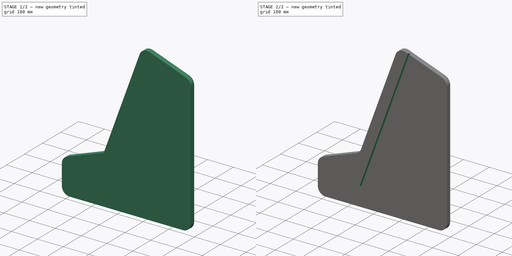
[diagram: build sequence overview — one tinted view per stage of 2, left to right]
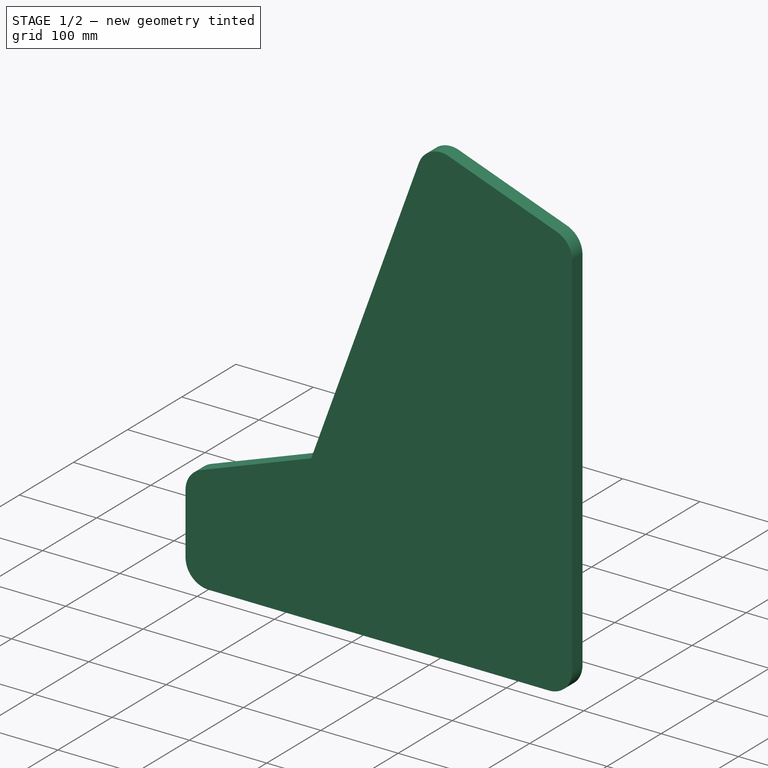
[diagram: stage 1 of 2 — iso view after this stage's code; geometry added in this stage tinted green]
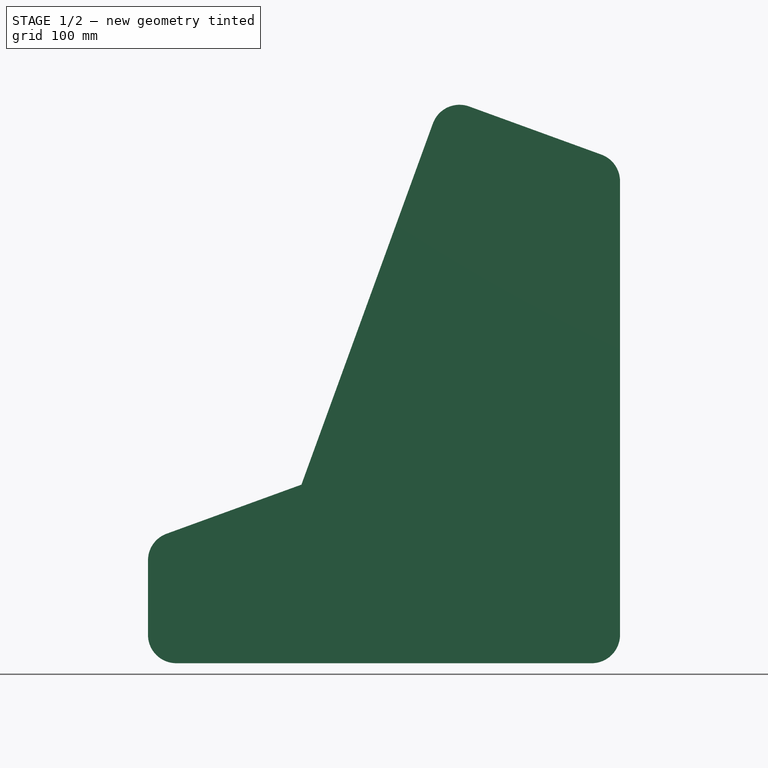
[diagram: stage 1 of 2 — front view after this stage's code; geometry added in this stage tinted green]
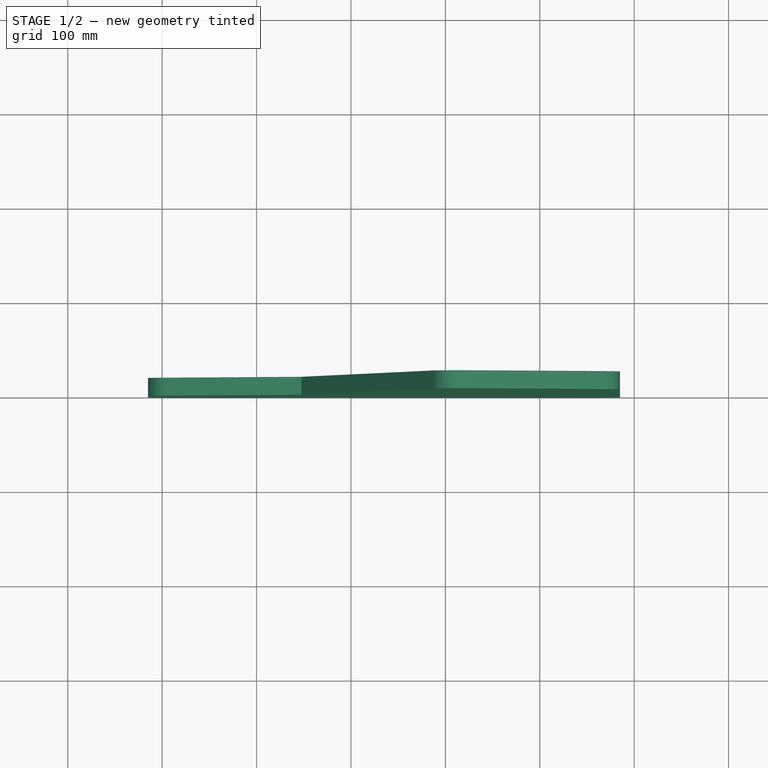
[diagram: stage 1 of 2 — top view after this stage's code; geometry added in this stage tinted green]
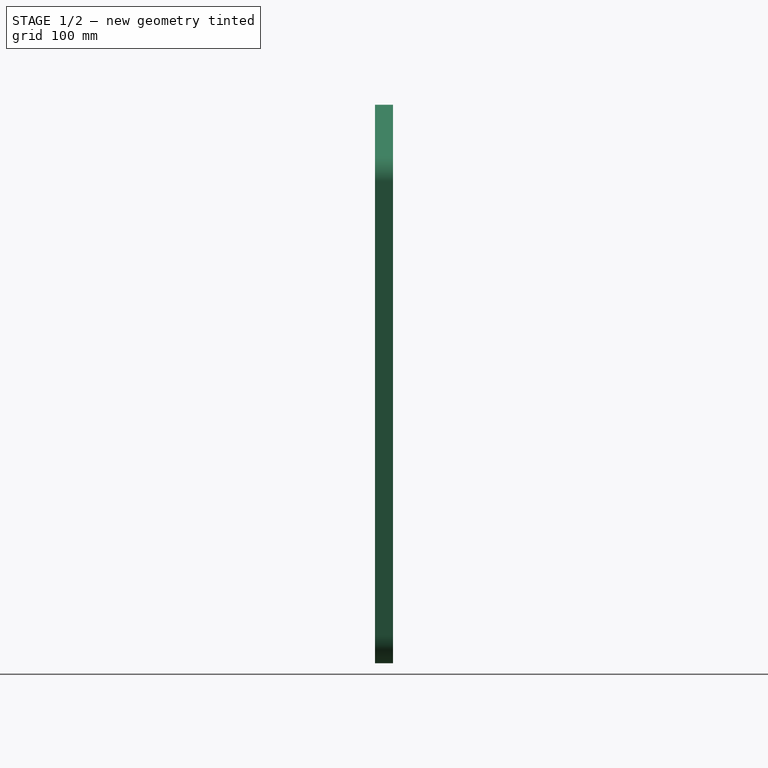
[diagram: stage 1 of 2 — right view after this stage's code; geometry added in this stage tinted green]
FCSTD DOCUMENT  (FreeCAD 0.18R16131 (Git))
Label: 9000_ASM_Profile_Sidewall_NoMarquee
License: All rights reserved
LicenseURL: http://en.wikipedia.org/wiki/All_rights_reserved
objects: TechDraw::DrawViewDimension×17, Sketcher::SketchObject×3, TechDraw::DrawViewPart×2, PartDesign::Fillet×2, Spreadsheet::Sheet×1, PartDesign::Pad×1, TechDraw::DrawSVGTemplate×1, TechDraw::DrawPage×1, PartDesign::Pocket×1, PartDesign::Body×1
note: 10 computed .brp shape members not serialized (recipe doc carries the construction recipe); baked Part::Feature solids carry a one-line shape summary decoded from their .brp

FEATURE [Spreadsheet::Sheet] Spreadsheet  label="XLS"
  cells = B2=BODY FLOOR; E2=Ext.Ref; B3=Z=; C3=16; D3=.T; E3=Thichness; B4=Y=; C4=500; D4=.W; E4=Width; B5=X=; C5=400; D5=.D; E5=Depth; B7=Position Side Wall; D8=Left; E8=Right; B9=X0; D9(X0)==+C5; B10=Y0; C10=Y0_2; D10(Y0)==+C4; E10(Y0_2)==+D10 - D11; B11=Z0; D11(Z0)=13; B15=Position Front Wall; B16=x; C16=X0_Front; D16(X0_Front)==+H16 * abs(cos(D19)); F16=Distance on incline; G16=nS; H16(nS)=50; I16=mm; B17=y; C17=Y0_Front; D17(Y0_Front)=0; B18=z; C18=Z0_Front; D18(Z0_Front)==+H16 * abs(sin(D19)) + H18 + H20; F18=Hight of Incline; G18=nH; H18(nH)==125 + 2; I18=mm; B19=angle; C19=angley; D19(angley)=-70; F20=Thickness Material; H20=13; B22=Position Pedastil; B23=x; C23=x_pedastil; D23(x_pedastil)=0; B24=y; C24=y_pedastil; D24(y_pedastil)=0; B25=z; C25=z_pedastil; D25(z_pedastil)=-716; B27=Position Marquee; B28=x; C28==x_pedastil; B29=y; C29==y_pedastil; B30=z; C30==z_pedastil; B31=Incline
FEATURE [Sketcher::SketchObject] Sketch
  Placement = pos=(0,0,0) rot=(1,0,0;1.5708rad)
  sketch-geometry (8):
    g0: LineSegment StartX=-18.8859 StartY=-15 StartZ=0 EndX=416.114 EndY=-15 EndZ=0
    g1: LineSegment StartX=416.114 StartY=-15 StartZ=0 EndX=416.114 EndY=575 EndZ=0
    g2: LineSegment StartX=416.114 StartY=575 StartZ=0 EndX=176.973 EndY=663.523 EndZ=0
    g3: LineSegment StartX=176.973 StartY=663.523 StartZ=0 EndX=130.145 EndY=542.25 EndZ=0
    g4: LineSegment StartX=130.145 StartY=542.25 StartZ=0 EndX=271.305 EndY=491.516 EndZ=0
    g5: LineSegment StartX=271.305 StartY=491.516 StartZ=0 EndX=134.264 EndY=115 EndZ=0
    g6: LineSegment StartX=134.264 StartY=115 StartZ=0 EndX=-18.8859 EndY=115 EndZ=0
    g7: LineSegment StartX=-18.8859 StartY=115 StartZ=0 EndX=-18.8859 EndY=-15 EndZ=0
  constraints (20):
    c: Coincident(g0,g1)
    c: Coincident(g1,g2)
    c: Coincident(g2,g3)
    c: Coincident(g3,g4)
    c: Coincident(g4,g5)
    c: Coincident(g5,g6)
    c: Coincident(g6,g7)
    c: Perpendicular(g6,g7)
    c: Vertical(g7)
    c: Angle(g5,g6) = 1.91986
    c: Vertical(g1)
    c: Distance(g2) = 255
    c: Distance(g4) = 150
    c: Distance(g3) = 130
    c: Coincident(g7,g0)
    c: Horizontal(g0)
    c: DistanceY(g7,g7) = 130
    c: Distance(g1) = 590
    c: DistanceX(g0,g0) = 435
    c: DistanceY(g0,g-1) = 15
FEATURE [Sketcher::SketchObject] Sketch001
  MapMode = 5
  Placement = pos=(0,0,0) rot=(1,0,0;1.5708rad)
  Support = -> [XZ_Plane]
  sketch-geometry (7):
    g0: LineSegment StartX=-15 StartY=-15 StartZ=0 EndX=-15 EndY=115 EndZ=0
    g1: LineSegment StartX=147.526 StartY=174.155 StartZ=0 EndX=297.061 EndY=585 EndZ=0
    g2: LineSegment StartX=297.061 StartY=585 StartZ=0 EndX=485 EndY=516.596 EndZ=0
    g3: LineSegment StartX=485 StartY=516.596 StartZ=0 EndX=485 EndY=-15 EndZ=0
    g4: LineSegment StartX=485 StartY=-15 StartZ=0 EndX=-15 EndY=-15 EndZ=0
    g5: LineSegment StartX=-15 StartY=115 StartZ=0 EndX=147.526 EndY=174.155 EndZ=0
    g6: LineSegment [constr] StartX=-15 StartY=-15 StartZ=0 EndX=0 EndY=0 EndZ=0
  constraints (20):
    c: Coincident(g1,g2)
    c: Coincident(g2,g3)
    c: Coincident(g3,g4)
    c: Horizontal(g4)
    c: Vertical(g3)
    c: Vertical(g0)
    c: Perpendicular(g2,g1)
    c: Angle(g2,g3) = 1.91986
    c: DistanceX(g4,g4) = 500
    c: DistanceY(g0,g0) = 130
    c: Distance(g2) = 200
    c: Angle(g0,g5) = 1.91986
    c: Coincident(g5,g0)
    c: Coincident(g1,g5)
    c: Coincident(g0,g4)
    c: Coincident(g6,g0)
    c: DistanceX(g6,g6) = 15
    c: DistanceY(g6,g6) = 15
    c: Coincident(g6,g-1)
    c: DistanceY(g3,g1) = 600
FEATURE [PartDesign::Pad] Pad
  Length = 19
  Length2 = 100
  Placement = pos=(0,0,0) rot=(1,0,0;1.5708rad)
  Profile = -> Sketch001
  Reversed = true
  Type = 0
FEATURE [TechDraw::DrawSVGTemplate] Template
  EditableTexts = Designed_by_Name=Designed by Name; Drawing_number=Drawing number; FC-Date=Date; FC-SC=0.25; FC-SH=1; FC-Title=Sidewall No-Marquee; Subtitle=Subtitle; Weight=.
  Height = 210
  Orientation = 1
  Width = 297
FEATURE [TechDraw::DrawViewPart] View
  CoarseView = false
  Direction = (0,1,0)
  Focus = 100
  HardHidden = false
  IsoCount = 0
  IsoHidden = true
  IsoVisible = true
  LockPosition = false
  Perspective = false
  Rotation = -90
  Scale = 0.2
  ScaleType = 0
  SeamHidden = false
  SeamVisible = false
  SmoothHidden = false
  SmoothVisible = false
  Source = -> [Sketch001]
  X = 128.3
  Y = 134.016
FEATURE [TechDraw::DrawViewDimension] Dimension
  Arbitrary = false
  FormatSpec = %.2f
  LockPosition = false
  MeasureType = 1
  OverTolerance = 0
  References2D = -> [View]
  Rotation = 0
  ScaleType = 0
  Type = 1
  UnderTolerance = 0
  X = 3.00512
  Y = -57.3431
FEATURE [TechDraw::DrawViewDimension] Dimension001
  Arbitrary = false
  FormatSpec = %.2f
  LockPosition = false
  MeasureType = 1
  OverTolerance = 0
  References2D = -> [View]
  Rotation = 0
  ScaleType = 0
  Type = 2
  UnderTolerance = 0
  X = 104.845
  Y = -5.10871
FEATURE [TechDraw::DrawViewDimension] Dimension003
  Arbitrary = false
  FormatSpec = %.2f
  LockPosition = false
  MeasureType = 1
  OverTolerance = 0
  References2D = -> [View]
  Rotation = 0
  ScaleType = 0
  Type = 0
  UnderTolerance = 0
  X = -63.7149
  Y = 24.8892
FEATURE [TechDraw::DrawViewDimension] Dimension004
  Arbitrary = false
  FormatSpec = %.2f
  LockPosition = false
  MeasureType = 1
  OverTolerance = 0
  References2D = -> [View]
  Rotation = 0
  ScaleType = 0
  Type = 6
  UnderTolerance = 0
  X = -49.7743
  Y = -26.9413
FEATURE [TechDraw::DrawViewDimension] Dimension005
  Arbitrary = false
  FormatSpec = %.2f
  LockPosition = false
  MeasureType = 1
  OverTolerance = 0
  References2D = -> [View]
  Rotation = 0
  ScaleType = 0
  Type = 6
  UnderTolerance = 0
  X = 51.5247
  Y = -30.3126
FEATURE [TechDraw::DrawViewDimension] Dimension006
  Arbitrary = false
  FormatSpec = %.2f
  LockPosition = false
  MeasureType = 1
  OverTolerance = 0
  References2D = -> [View]
  Rotation = 0
  ScaleType = 0
  Type = 2
  UnderTolerance = 0
  X = -92.8126
  Y = -16.2238
FEATURE [TechDraw::DrawViewDimension] Dimension007
  Arbitrary = false
  FormatSpec = %.2f
  LockPosition = false
  MeasureType = 1
  OverTolerance = 0
  References2D = -> [View]
  Rotation = 0
  ScaleType = 0
  Type = 2
  UnderTolerance = 0
  X = -34.1387
  Y = -17.5113
FEATURE [TechDraw::DrawViewDimension] Dimension008
  Arbitrary = false
  FormatSpec = %.2f
  LockPosition = false
  MeasureType = 1
  OverTolerance = 0
  References2D = -> [View]
  Rotation = 0
  ScaleType = 0
  Type = 1
  UnderTolerance = 0
  X = 31.6166
  Y = 8.92218
FEATURE [TechDraw::DrawViewDimension] Dimension009
  Arbitrary = false
  FormatSpec = %.2f
  LockPosition = false
  MeasureType = 1
  OverTolerance = 0
  References2D = -> [View]
  Rotation = 0
  ScaleType = 0
  Type = 1
  UnderTolerance = 0
  X = 50.5208
  Y = 31.5948
FEATURE [TechDraw::DrawViewDimension] Dimension010
  Arbitrary = false
  FormatSpec = %.2f
  LockPosition = false
  MeasureType = 1
  OverTolerance = 0
  References2D = -> [View]
  Rotation = 0
  ScaleType = 0
  Type = 2
  UnderTolerance = 0
  X = 16.7059
  Y = -8.94018
FEATURE [PartDesign::Fillet] Fillet
  Base = -> Pad [Edge2,Edge1,Edge8,Edge11,Edge14]
  BaseFeature = -> Pad
  Placement = pos=(0,0,0) rot=(1,0,0;1.5708rad)
  Radius = 30
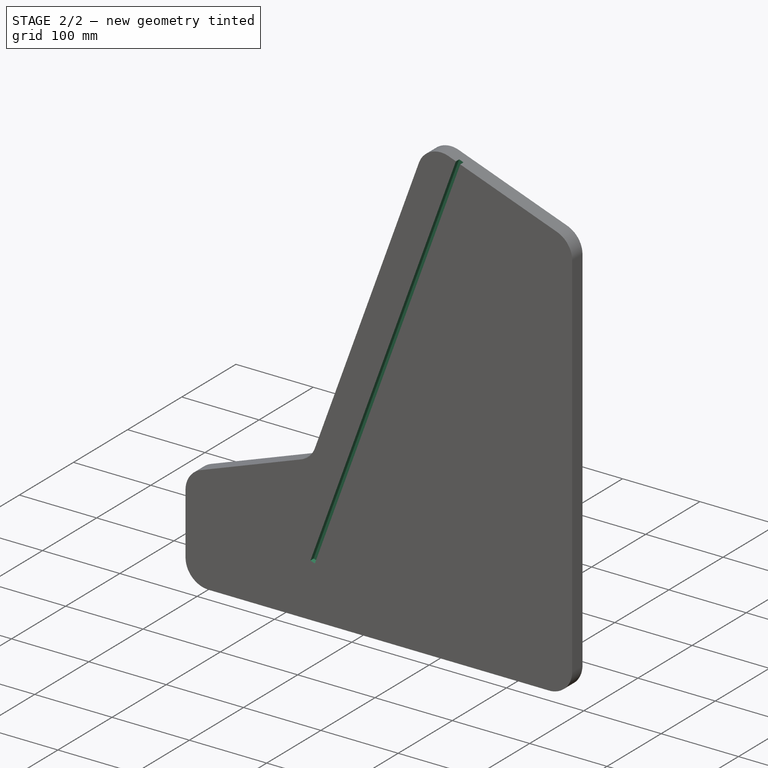
[diagram: stage 2 of 2 — iso view after this stage's code; geometry added in this stage tinted green]
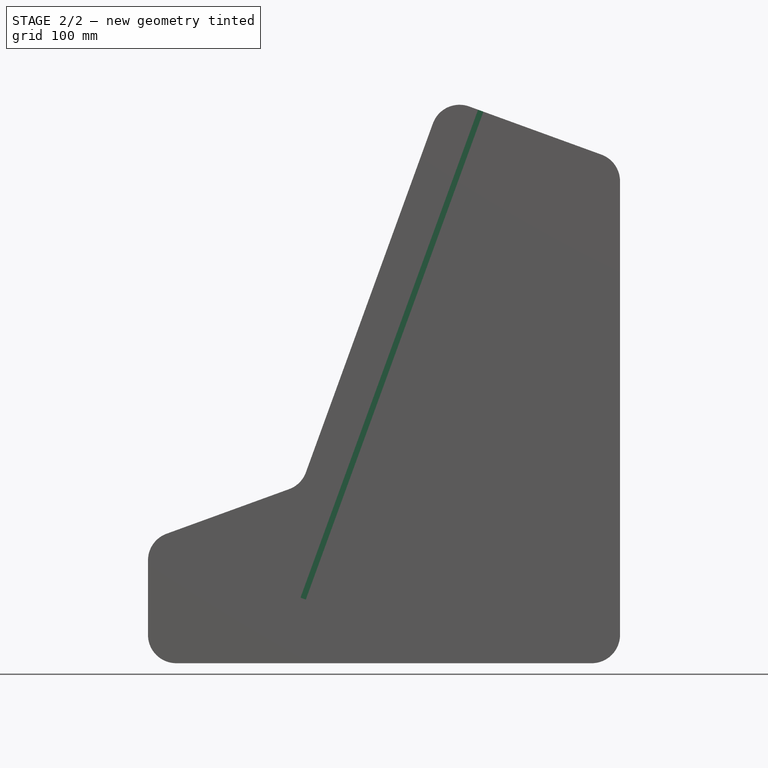
[diagram: stage 2 of 2 — front view after this stage's code; geometry added in this stage tinted green]
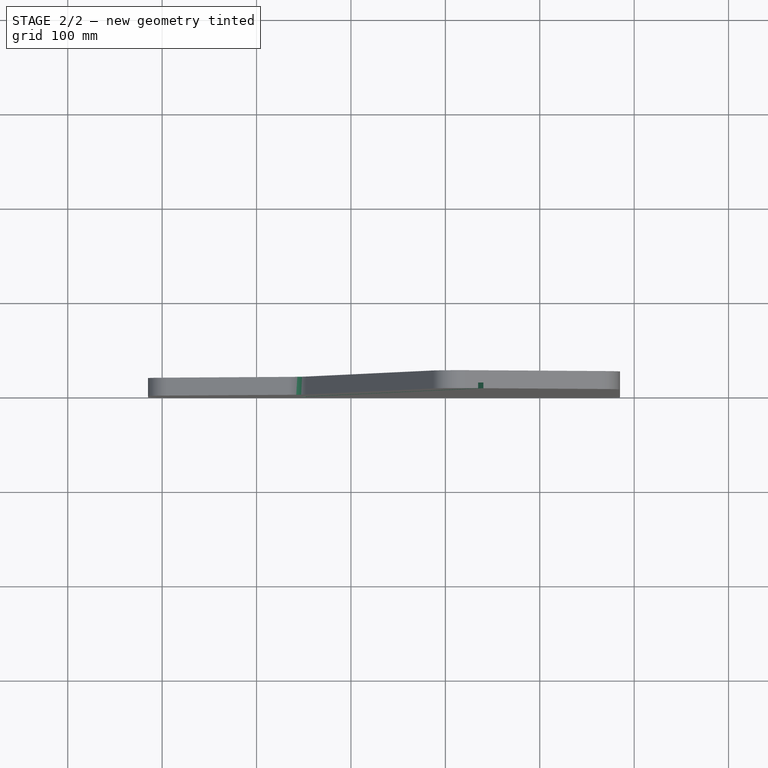
[diagram: stage 2 of 2 — top view after this stage's code; geometry added in this stage tinted green]
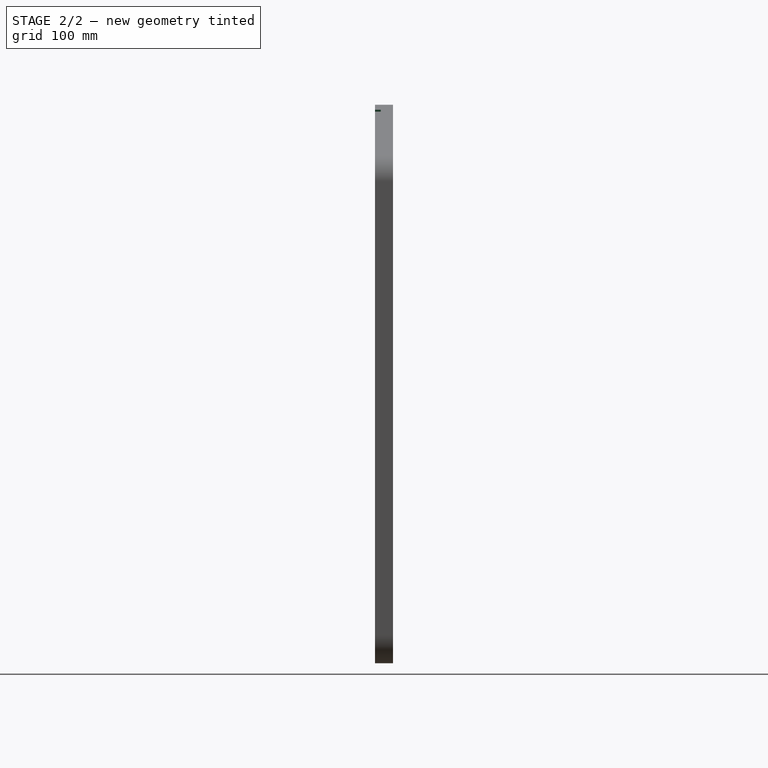
[diagram: stage 2 of 2 — right view after this stage's code; geometry added in this stage tinted green]
FEATURE [PartDesign::Fillet] Fillet001
  Base = -> Fillet [Edge28]
  BaseFeature = -> Fillet
  Placement = pos=(0,0,0) rot=(1,0,0;1.5708rad)
  Radius = 30
FEATURE [TechDraw::DrawViewPart] View002
  CoarseView = false
  Direction = (0,1,0)
  Focus = 100
  HardHidden = false
  IsoCount = 0
  IsoHidden = false
  IsoVisible = false
  LockPosition = false
  Perspective = false
  Rotation = 90
  Scale = 0.25
  ScaleType = 0
  SeamHidden = false
  SeamVisible = false
  SmoothHidden = false
  SmoothVisible = false
  Source = -> [Sketch001]
  X = 135.55
  Y = 122.991
FEATURE [TechDraw::DrawViewDimension] Dimension011
  Arbitrary = false
  FormatSpec = %.2f
  LockPosition = false
  MeasureType = 1
  OverTolerance = 0
  References2D = -> [View002]
  Rotation = 0
  ScaleType = 0
  Type = 1
  UnderTolerance = 0
  X = -2.54216
  Y = 71.3165
FEATURE [TechDraw::DrawViewDimension] Dimension012
  Arbitrary = false
  FormatSpec = %.2f
  LockPosition = false
  MeasureType = 1
  OverTolerance = 0
  References2D = -> [View002]
  Rotation = 0
  ScaleType = 0
  Type = 2
  UnderTolerance = 0
  X = -104.488
  Y = 0
FEATURE [TechDraw::DrawViewDimension] Dimension013
  Arbitrary = false
  FormatSpec = %.2f
  LockPosition = false
  MeasureType = 1
  OverTolerance = 0
  References2D = -> [View002]
  Rotation = 0
  ScaleType = 0
  Type = 1
  UnderTolerance = 0
  X = -60.3515
  Y = -71.2574
FEATURE [TechDraw::DrawViewDimension] Dimension014
  Arbitrary = false
  FormatSpec = %.2f
  LockPosition = false
  MeasureType = 1
  OverTolerance = 0
  References2D = -> [View002]
  Rotation = 0
  ScaleType = 0
  Type = 6
  UnderTolerance = 0
  X = -49.3403
  Y = -39.8344
FEATURE [TechDraw::DrawViewDimension] Dimension015
  Arbitrary = false
  FormatSpec = %.2f
  LockPosition = false
  MeasureType = 1
  OverTolerance = 0
  References2D = -> [View002]
  Rotation = 0
  ScaleType = 0
  Type = 6
  UnderTolerance = 0
  X = 57.2619
  Y = 45.9453
FEATURE [TechDraw::DrawViewDimension] Dimension016
  Arbitrary = false
  FormatSpec = %.2f
  LockPosition = false
  MeasureType = 1
  OverTolerance = 0
  References2D = -> [View002]
  Rotation = 0
  ScaleType = 0
  Type = 6
  UnderTolerance = 0
  X = 61.5622
  Y = 25.5755
FEATURE [TechDraw::DrawViewDimension] Dimension017
  Arbitrary = false
  FormatSpec = %.2f
  LockPosition = false
  MeasureType = 1
  OverTolerance = 0
  References2D = -> [View002]
  Rotation = 0
  ScaleType = 0
  Type = 0
  UnderTolerance = 0
  X = 92.6539
  Y = 47.6404
FEATURE [TechDraw::DrawPage] Page
  KeepUpdated = true
  ProjectionType = 0
  Template = -> Template
  Views = -> [View,Dimension,Dimension001,Dimension003,Dimension004,Dimension005,Dimension006,Dimension007,Dimension008,Dimension009,Dimension010,View002,Dimension011,Dimension012,Dimension013,Dimension014,Dimension015,Dimension016,Dimension017]
FEATURE [Sketcher::SketchObject] Sketch002
  ExternalGeometry = -> [Fillet001]
  MapMode = 5
  Placement = pos=(0,-4e-16,0) rot=(1,0,0;1.5708rad)
  Support = -> [Fillet001]
  sketch-geometry (5):
    g0: LineSegment StartX=340.287 StartY=569.267 StartZ=0 EndX=152.176 EndY=52.4361 EndZ=0
    g1: LineSegment StartX=146.538 StartY=54.4883 StartZ=0 EndX=334.649 EndY=571.319 EndZ=0
    g2: LineSegment StartX=152.176 StartY=52.4361 StartZ=0 EndX=146.538 EndY=54.4883 EndZ=0
    g3: LineSegment StartX=334.649 StartY=571.319 StartZ=0 EndX=340.287 EndY=569.267 EndZ=0
    g4: LineSegment [constr] StartX=152.311 StartY=187.3 StartZ=0 EndX=189.898 EndY=173.619 EndZ=0
  constraints (15):
    c: Parallel(g0,g1)
    c: Coincident(g2,g0)
    c: Coincident(g2,g1)
    c: Coincident(g3,g1)
    c: Coincident(g3,g0)
    c: Perpendicular(g1,g3)
    c: Perpendicular(g1,g2)
    c: Parallel(g1,g-6)
    c: Distance(g3) = 6
    c: Coincident(g4,g-6)
    c: PointOnObject(g4,g1)
    c: Perpendicular(g1,g4)
    c: Distance(g4) = 40
    c: PointOnObject(g0,g-5)
    c: Distance(g0) = 550
FEATURE [PartDesign::Pocket] Pocket
  BaseFeature = -> Fillet001
  Length = 6
  Length2 = 100
  Placement = pos=(0,0,0) rot=(1,0,0;1.5708rad)
  Profile = -> Sketch002
  Type = 0
FEATURE [PartDesign::Body] Body
  Group = -> [Sketch001,Pad,Fillet,Fillet001,Sketch002,Pocket]
  Origin = -> Origin
  Tip = -> Pocket
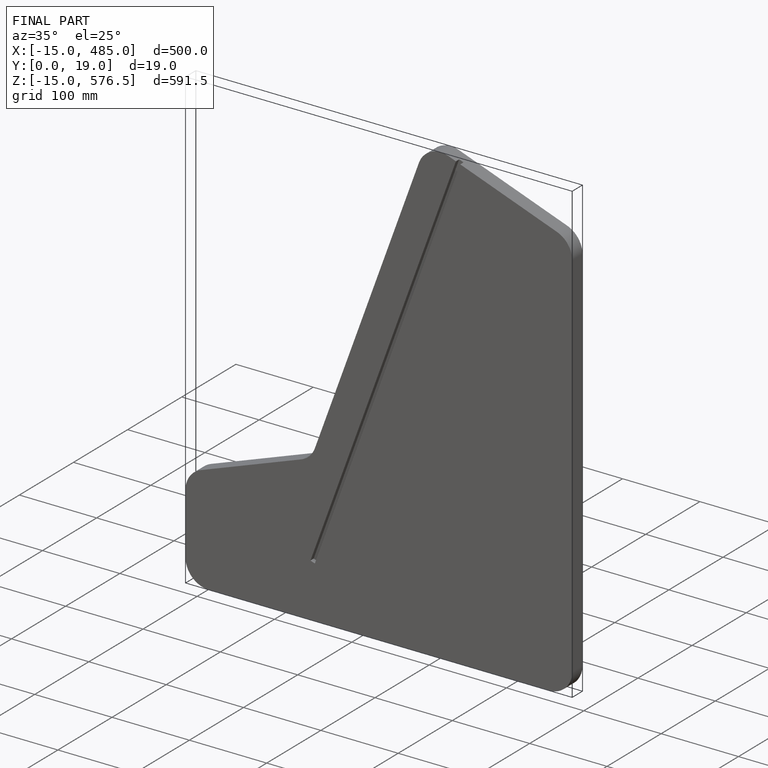
[diagram: finished part — iso view with bounding-box wireframe]
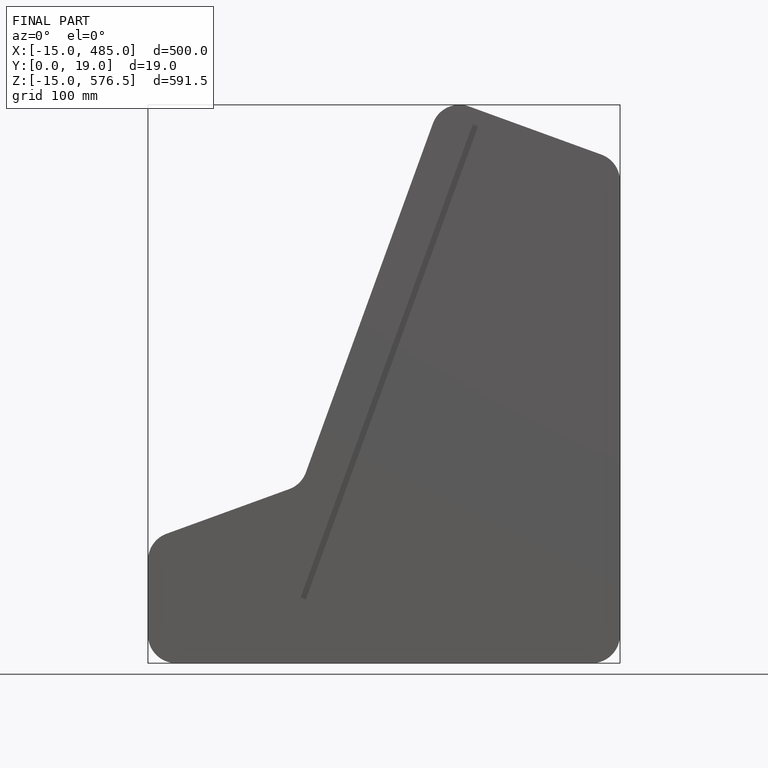
[diagram: finished part — front view with bounding-box wireframe]
